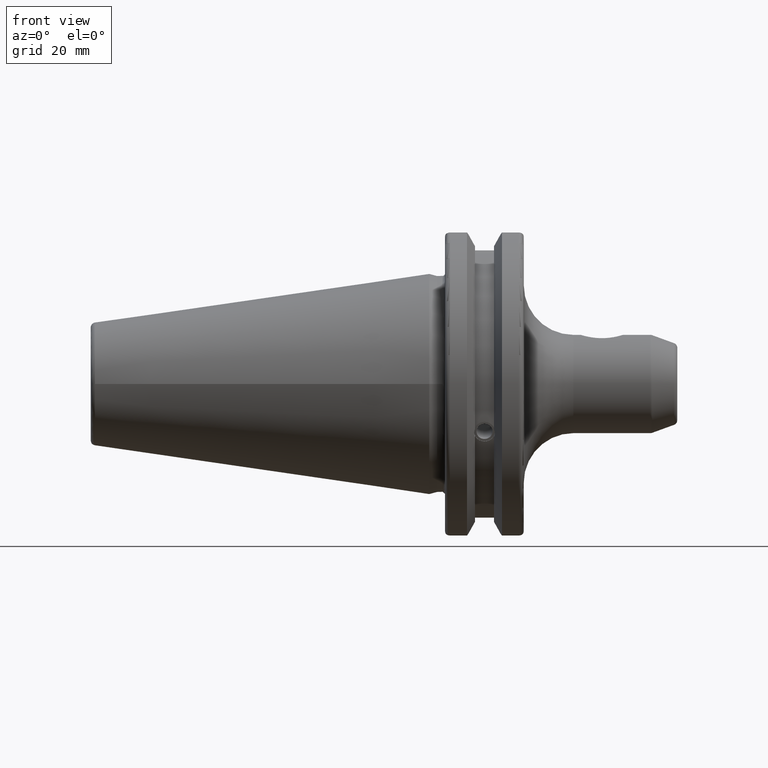
[diagram: clean part render]
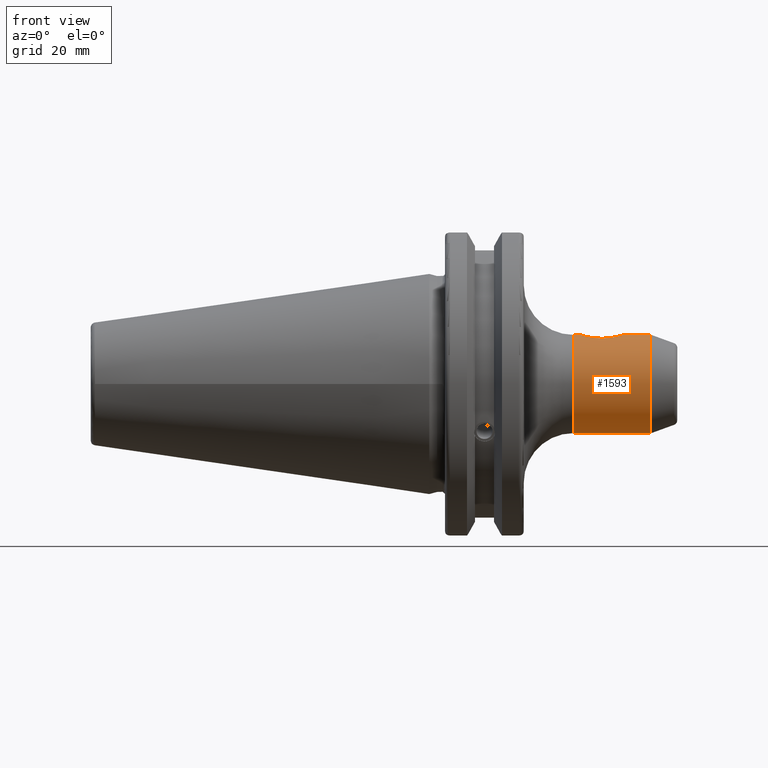
[diagram: same view with one face highlighted and labeled with its STEP entity id]
A machine part, front view. The second image highlights one B-rep face of the part: STEP entity #1593.
In plain terms, the highlighted cylindrical surface (bore or boss wall) has radius 9.906 mm, axis along (-1, 0, 0).
Its self-contained STEP definition (entity closure, byte-faithful):
#63=FACE_BOUND('',#300,.T.);
#124=CIRCLE('',#1732,9.906);
#126=CIRCLE('',#1735,9.906);
#200=FACE_OUTER_BOUND('',#299,.T.);
#299=EDGE_LOOP('',(#1144,#1145,#1146,#1147));
#300=EDGE_LOOP('',(#1148,#1149));
#393=B_SPLINE_CURVE_WITH_KNOTS('',3,(#2509,#2510,#2511,#2512,#2513,#2514,
#2515,#2516,#2517,#2518),.UNSPECIFIED.,.F.,.F.,(4,2,2,2,4),(0.,0.145751385966753,
0.291502771933506,0.443812615929159,0.596122459924812),.UNSPECIFIED.);
#394=B_SPLINE_CURVE_WITH_KNOTS('',3,(#2519,#2520,#2521,#2522,#2523,#2524,
#2525,#2526,#2527,#2528,#2529,#2530,#2531,#2532,#2533,#2534,#2535,#2536,
#2537,#2538,#2539,#2540,#2541,#2542,#2543,#2544),.UNSPECIFIED.,.F.,.F.,
(4,2,2,2,2,2,2,2,2,2,2,2,4),(0.596122459924812,0.748432303920465,0.900742147916118,
1.04649353388287,1.19224491984962,1.33799630581638,1.48374769178313,1.63605753577878,
1.78836737977444,1.94067722377009,2.09298706776574,2.23873845373249,2.38448983969925),
 .UNSPECIFIED.);
#438=LINE('',#2688,#537);
#537=VECTOR('',#1980,9.906);
#654=VERTEX_POINT('',#2506);
#655=VERTEX_POINT('',#2508);
#680=VERTEX_POINT('',#2682);
#681=VERTEX_POINT('',#2686);
#820=EDGE_CURVE('',#655,#654,#393,.T.);
#821=EDGE_CURVE('',#654,#655,#394,.T.);
#856=EDGE_CURVE('',#680,#680,#124,.T.);
#858=EDGE_CURVE('',#681,#681,#126,.T.);
#859=EDGE_CURVE('',#681,#680,#438,.T.);
#1144=ORIENTED_EDGE('',*,*,#858,.F.);
#1145=ORIENTED_EDGE('',*,*,#859,.T.);
#1146=ORIENTED_EDGE('',*,*,#856,.F.);
#1147=ORIENTED_EDGE('',*,*,#859,.F.);
#1148=ORIENTED_EDGE('',*,*,#820,.T.);
#1149=ORIENTED_EDGE('',*,*,#821,.T.);
#1554=CYLINDRICAL_SURFACE('',#1734,9.906);
#1593=ADVANCED_FACE('',(#200,#63),#1554,.T.);
#1732=AXIS2_PLACEMENT_3D('',#2683,#1972,#1973);
#1734=AXIS2_PLACEMENT_3D('',#2685,#1976,#1977);
#1735=AXIS2_PLACEMENT_3D('',#2687,#1978,#1979);
#1972=DIRECTION('center_axis',(1.,0.,0.));
#1973=DIRECTION('ref_axis',(0.,1.22464679914735E-16,-1.));
#1976=DIRECTION('center_axis',(-1.,0.,0.));
#1977=DIRECTION('ref_axis',(0.,0.,1.));
#1978=DIRECTION('center_axis',(-1.,0.,0.));
#1979=DIRECTION('ref_axis',(0.,1.22464679914735E-16,-1.));
#1980=DIRECTION('',(1.,0.,0.));
#2506=CARTESIAN_POINT('',(30.55,-5.20474889637625E-16,9.906));
#2508=CARTESIAN_POINT('',(34.8,-3.5803409709534,9.23634097095341));
#2509=CARTESIAN_POINT('Ctrl Pts',(34.8,-3.5803409709534,9.23634097095341));
#2510=CARTESIAN_POINT('Ctrl Pts',(34.3141620467775,-3.5803409709534,9.23634097095341));
#2511=CARTESIAN_POINT('Ctrl Pts',(33.7910032587436,-3.50490777288373,9.26676335621536));
#2512=CARTESIAN_POINT('Ctrl Pts',(32.805331572309,-3.18741180583477,9.38070839349782));
#2513=CARTESIAN_POINT('Ctrl Pts',(32.3426167394859,-2.94544669224791,9.46275142206751));
#2514=CARTESIAN_POINT('Ctrl Pts',(31.5624191466605,-2.35281503207088,9.6276637099385));
#2515=CARTESIAN_POINT('Ctrl Pts',(31.1941615171748,-1.95193612667004,9.72297648207084));
#2516=CARTESIAN_POINT('Ctrl Pts',(30.6874468319488,-1.02983906070029,9.86335448449868));
#2517=CARTESIAN_POINT('Ctrl Pts',(30.55,-0.50769947998551,9.906));
#2518=CARTESIAN_POINT('Ctrl Pts',(30.55,-5.55111512312578E-16,9.906));
#2519=CARTESIAN_POINT('Ctrl Pts',(30.55,-9.0205620750794E-16,9.906));
#2520=CARTESIAN_POINT('Ctrl Pts',(30.55,0.507699479985509,9.906));
#2521=CARTESIAN_POINT('Ctrl Pts',(30.6874468319488,1.02983906070028,9.86335448449868));
#2522=CARTESIAN_POINT('Ctrl Pts',(31.1941615171748,1.95193612667004,9.72297648207084));
#2523=CARTESIAN_POINT('Ctrl Pts',(31.5624191466605,2.35281503207088,9.6276637099385));
#2524=CARTESIAN_POINT('Ctrl Pts',(32.3426167394859,2.94544669224791,9.46275142206751));
#2525=CARTESIAN_POINT('Ctrl Pts',(32.805331572309,3.18741180583477,9.38070839349782));
#2526=CARTESIAN_POINT('Ctrl Pts',(33.7910032587436,3.50490777288373,9.26676335621536));
#2527=CARTESIAN_POINT('Ctrl Pts',(34.3141620467775,3.5803409709534,9.23634097095341));
#2528=CARTESIAN_POINT('Ctrl Pts',(35.2858379532225,3.5803409709534,9.23634097095341));
#2529=CARTESIAN_POINT('Ctrl Pts',(35.8089967412564,3.50490777288373,9.26676335621536));
#2530=CARTESIAN_POINT('Ctrl Pts',(36.794668427691,3.18741180583477,9.38070839349782));
#2531=CARTESIAN_POINT('Ctrl Pts',(37.2573832605141,2.94544669224791,9.46275142206751));
#2532=CARTESIAN_POINT('Ctrl Pts',(38.0375808533395,2.35281503207088,9.6276637099385));
#2533=CARTESIAN_POINT('Ctrl Pts',(38.4058384828252,1.95193612667004,9.72297648207084));
#2534=CARTESIAN_POINT('Ctrl Pts',(38.9125531680512,1.02983906070028,9.86335448449868));
#2535=CARTESIAN_POINT('Ctrl Pts',(39.05,0.50769947998551,9.906));
#2536=CARTESIAN_POINT('Ctrl Pts',(39.05,-0.507699479985509,9.906));
#2537=CARTESIAN_POINT('Ctrl Pts',(38.9125531680512,-1.02983906070029,9.86335448449868));
#2538=CARTESIAN_POINT('Ctrl Pts',(38.4058384828252,-1.95193612667004,9.72297648207084));
#2539=CARTESIAN_POINT('Ctrl Pts',(38.0375808533395,-2.35281503207088,9.6276637099385));
#2540=CARTESIAN_POINT('Ctrl Pts',(37.2573832605141,-2.94544669224791,9.46275142206751));
#2541=CARTESIAN_POINT('Ctrl Pts',(36.794668427691,-3.18741180583477,9.38070839349782));
#2542=CARTESIAN_POINT('Ctrl Pts',(35.8089967412564,-3.50490777288373,9.26676335621536));
#2543=CARTESIAN_POINT('Ctrl Pts',(35.2858379532225,-3.5803409709534,9.23634097095341));
#2544=CARTESIAN_POINT('Ctrl Pts',(34.8,-3.5803409709534,9.23634097095341));
#2682=CARTESIAN_POINT('',(44.586981057811,-1.21313511923537E-15,-9.906));
#2683=CARTESIAN_POINT('Origin',(44.586981057811,0.,0.));
#2685=CARTESIAN_POINT('Origin',(31.9066540192597,0.,0.));
#2686=CARTESIAN_POINT('',(29.05,-1.21313511923537E-15,-9.906));
#2687=CARTESIAN_POINT('Origin',(29.05,0.,0.));
#2688=CARTESIAN_POINT('',(31.9066540192597,-1.21313511923537E-15,-9.906));